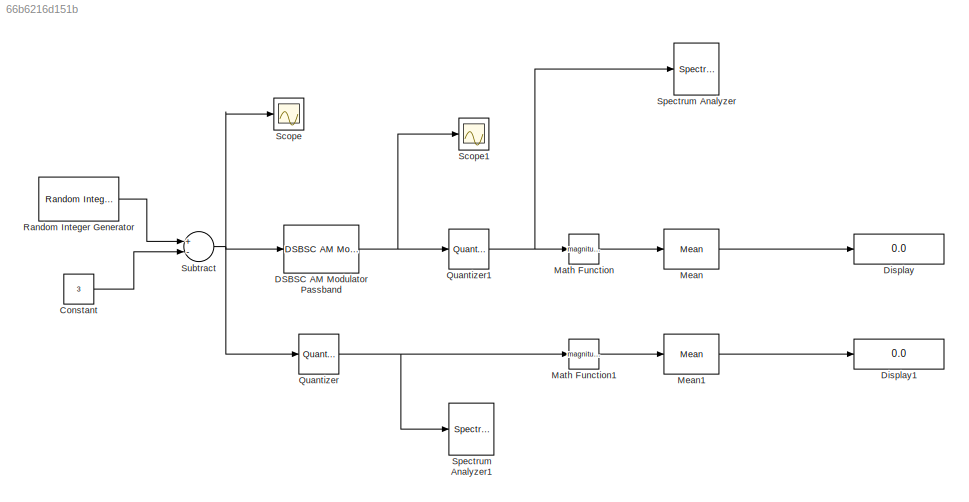
MODEL slx_66b6216d151b
KIND model
BLOCK [Constant] Constant
  Value = 3
BLOCK [Reference] DSBSC AM Modulator Passband  REF=commanapbnd3/DSBSC AM
Modulator
Passband
  Fc = 100
  Ph = 0
  Ports = [1, 1]
  SourceBlock = commanapbnd3/DSBSC AM\nModulator\nPassband
  SourceType = DSBSC AM Modulator Passband
BLOCK [Display] Display
  Decimation = 1
  Ports = [1]
BLOCK [Display] Display1
  Decimation = 1
  Ports = [1]
BLOCK [Math] Math Function
  Operator = magnitude^2
  Ports = [1, 1]
BLOCK [Math] Math Function1
  Operator = magnitude^2
  Ports = [1, 1]
BLOCK [Reference] Mean  REF=dspstat3/Mean
  InputProcessing = Columns as channels (frame based)
  LockScale = off
  Ports = [1, 1]
  SourceBlock = dspstat3/Mean
  SourceType = Mean
  UserDataPersistent = on
  accumDataTypeStr = Inherit: Same as input
  accumFracLength = 30
  accumLastDataTypeStr = Inherit: Same as input
  accumMode = Same as input
  accumWordLength = 32
  additionalParams = off
  allowOverrides = on
  dimension = 1
  directionMode = Each column
  outputDataTypeStr = Inherit: Same as accumulator
  outputFracLength = 30
  outputLastDataTypeStr = Inherit: Same as accumulator
  outputMax = []
  outputMin = []
  outputMode = Same as accumulator
  outputWordLength = 32
  overflowMode = off
  reset_popup = None
  roiEnable = off
  roiFlag = off
  roiOutput = Individual statistics for each ROI
  roiPortion = Entire ROI
  roiType = Rectangles
  roundingMode = Floor
  run = on
  treatSBRowAsCol = on
BLOCK [Reference] Mean1  REF=dspstat3/Mean
  InputProcessing = Columns as channels (frame based)
  LockScale = off
  Ports = [1, 1]
  SourceBlock = dspstat3/Mean
  SourceType = Mean
  UserDataPersistent = on
  accumDataTypeStr = Inherit: Same as input
  accumFracLength = 30
  accumLastDataTypeStr = Inherit: Same as input
  accumMode = Same as input
  accumWordLength = 32
  additionalParams = off
  allowOverrides = on
  dimension = 1
  directionMode = Each column
  outputDataTypeStr = Inherit: Same as accumulator
  outputFracLength = 30
  outputLastDataTypeStr = Inherit: Same as accumulator
  outputMax = []
  outputMin = []
  outputMode = Same as accumulator
  outputWordLength = 32
  overflowMode = off
  reset_popup = None
  roiEnable = off
  roiFlag = off
  roiOutput = Individual statistics for each ROI
  roiPortion = Entire ROI
  roiType = Rectangles
  roundingMode = Floor
  run = on
  treatSBRowAsCol = on
BLOCK [Quantizer] Quantizer
  LinearizeAsGain = off
  QuantizationInterval = 0.001
  SampleTime = 0.001
BLOCK [Quantizer] Quantizer1
  LinearizeAsGain = off
  QuantizationInterval = 0.001
  SampleTime = 0.001
BLOCK [Reference] Random Integer Generator  REF=commrandsrc2/Random Integer
Generator
  Ports = [0, 1]
  SourceBlock = commrandsrc2/Random Integer\nGenerator
  SourceType = Random Integer Generator
  Ts = 1/10
  frameBased = off
  mul = 7
  orient = off
  outDataType = double
  sampPerFrame = 1
  seed = 37
BLOCK [Scope] Scope
  DataFormat = StructureWithTime
  Floating = off
  NumInputPorts = 1
  Ports = [1]
  SampleTime = 0
  ShowLegends = off
BLOCK [Scope] Scope1
  DataFormat = StructureWithTime
  Floating = off
  NumInputPorts = 1
  Ports = [1]
  SampleTime = 0
  SaveName = ScopeData1
  ShowLegends = off
BLOCK [SpectrumAnalyzer] Spectrum Analyzer
  Ports = [1]
BLOCK [SpectrumAnalyzer] Spectrum Analyzer1
  Ports = [1]
BLOCK [Sum] Subtract
  InputSameDT = off
  Inputs = +-
  OutDataTypeStr = Inherit: Inherit via internal rule
  Ports = [2, 1]
  SaturateOnIntegerOverflow = off
LINE Constant:1 -> Subtract:2
NET DSBSC AM Modulator Passband:1 -> Quantizer1:1, Scope1:1
LINE Math Function1:1 -> Mean1:1
LINE Math Function:1 -> Mean:1
LINE Mean1:1 -> Display1:1
LINE Mean:1 -> Display:1
NET Quantizer1:1 -> Math Function:1, Spectrum Analyzer:1
NET Quantizer:1 -> Math Function1:1, Spectrum Analyzer1:1
LINE Random Integer Generator:1 -> Subtract:1
NET Subtract:1 -> DSBSC AM Modulator Passband:1, Quantizer:1, Scope:1
note: NET lines group one-source signal fan-out (src -> all destinations, sorted); 1:1 wires keep LINE
